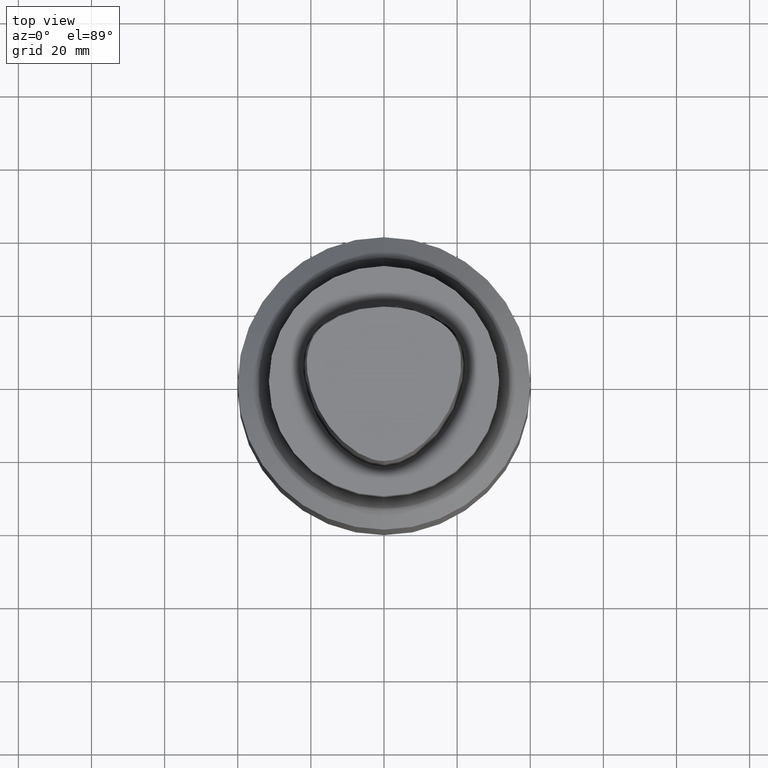
[diagram: clean part render]
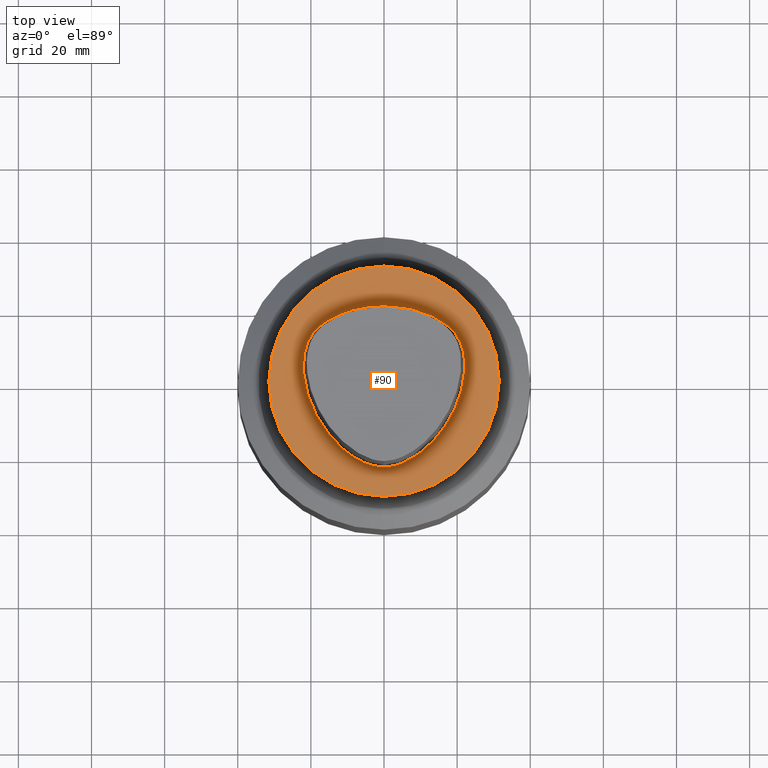
[diagram: same view with one face highlighted and labeled with its STEP entity id]
A machine part, top view. The second image highlights one B-rep face of the part: STEP entity #90.
In plain terms, the highlighted planar face has unit normal (-0, -0, 1).
Its self-contained STEP definition (entity closure, byte-faithful):
#53=EDGE_CURVE('Unnamed[1]',#135,#136,#137,.T.);
#55=EDGE_CURVE('Unnamed[1]',#139,#135,#140,.T.);
#69=EDGE_CURVE('Unnamed[1]',#136,#139,#159,.T.);
#85=EDGE_CURVE('Unnamed[1]',#181,#181,#182,.T.);
#90=ADVANCED_FACE('Unnamed[1]',(#188,#189),#190,.T.);
#135=VERTEX_POINT('',#235);
#136=VERTEX_POINT('',#236);
#137=B_SPLINE_CURVE_WITH_KNOTS('',3,(#237,#238,#239,#240,#241,#242,#243,#244,#245,#246,#247,#248,#249,#250,#251,#252,#253),.UNSPECIFIED.,.F.,.F.,(4,1,1,1,1,1,1,1,1,1,1,1,1,1,4),(-13.2302678617486,-12.816821991069,-12.4033761203893,-11.9899302497097,-11.57648437903,-11.1630385083504,-10.9563155730106,-10.7495926376707,-10.3361467669911,-9.92270089631145,-9.09580915495216,-8.26891741359287,-7.44202567223358,-7.02857980155394,-6.6151339308743),.UNSPECIFIED.);
#139=VERTEX_POINT('',#256);
#140=CIRCLE('',#257,0.949936168436318);
#159=B_SPLINE_CURVE_WITH_KNOTS('',3,(#436,#437,#438,#439,#440,#441,#442,#443,#444,#445,#446,#447,#448,#449,#450,#451,#452,#453),.UNSPECIFIED.,.F.,.F.,(4,1,1,1,1,1,1,1,1,2,1,1,1,1,4),(-6.6151339308743,-6.20168806019465,-5.78824218951501,-5.37479631883537,-4.96135044815572,-4.13445870679644,-3.30756696543715,-2.89412109475751,-2.48067522407786,-2.06722935339822,-1.65378348271857,-1.24033761203893,-0.826891741359287,-0.413445870679644,0.0),.UNSPECIFIED.);
#181=VERTEX_POINT('',#480);
#182=CIRCLE('',#481,31.5);
#188=FACE_BOUND('',#489,.T.);
#189=FACE_OUTER_BOUND('',#490,.T.);
#190=PLANE('',#491);
#235=CARTESIAN_POINT('',(0.044682985379347,20.6765087343109,1.61778115328528E-031));
#236=CARTESIAN_POINT('',(0.04359356758149,-23.4691235068931,7.78075697532443E-032));
#237=CARTESIAN_POINT('',(0.044682985379347,20.6765087343109,1.61778115328528E-031));
#238=CARTESIAN_POINT('',(1.42379272427753,20.6097915814392,8.62816615085482E-032));
#239=CARTESIAN_POINT('',(4.2230955003445,20.4837538303966,1.4791141972894E-031));
#240=CARTESIAN_POINT('',(8.47220762821777,19.6890432607088,9.86076131526265E-032));
#241=CARTESIAN_POINT('',(12.5141247708253,18.2434968480404,0.0));
#242=CARTESIAN_POINT('',(16.3038624872874,16.1734192182143,1.97215226305253E-031));
#243=CARTESIAN_POINT('',(19.1446913988473,13.7036723639434,-1.97215226305253E-031));
#244=CARTESIAN_POINT('',(20.7319894342149,11.1014620996188,0.0));
#245=CARTESIAN_POINT('',(21.7831756505763,8.28099229708081,-1.97215226305253E-031));
#246=CARTESIAN_POINT('',(22.2258240701438,4.60865440596506,0.0));
#247=CARTESIAN_POINT('',(21.7436130080666,-1.11326526354485,0.0));
#248=CARTESIAN_POINT('',(19.5519487660502,-7.95432366164584,0.0));
#249=CARTESIAN_POINT('',(14.9574167123838,-15.2089785567293,0.0));
#250=CARTESIAN_POINT('',(9.66840283021945,-20.0827414369705,-9.86076131526265E-032));
#251=CARTESIAN_POINT('',(4.51628650521788,-22.7946374572188,-9.86076131526265E-032));
#252=CARTESIAN_POINT('',(1.55867251738073,-23.4612972770043,-1.23259516440783E-032));
#253=CARTESIAN_POINT('',(0.04359356758149,-23.4691235068931,7.78075697532443E-032));
#256=CARTESIAN_POINT('',(-0.045171994691285,20.6766009553285,1.6755590516169E-031));
#257=AXIS2_PLACEMENT_3D('',#555,#556,#557);
#436=CARTESIAN_POINT('',(0.04359356758149,-23.4691235068931,7.78075697532443E-032));
#437=CARTESIAN_POINT('',(-1.4714994713963,-23.4767895315797,2.46519032881566E-032));
#438=CARTESIAN_POINT('',(-4.43923476371401,-22.821149804767,-4.93038065763132E-032));
#439=CARTESIAN_POINT('',(-8.35043230079961,-20.8000751253325,-9.86076131526265E-032));
#440=CARTESIAN_POINT('',(-11.744900222602,-18.1556117874078,-1.97215226305253E-031));
#441=CARTESIAN_POINT('',(-15.6989602501314,-14.0406306929147,-1.97215226305253E-031));
#442=CARTESIAN_POINT('',(-19.5352875070682,-8.00624990770787,1.97215226305253E-031));
#443=CARTESIAN_POINT('',(-21.7205626190491,-1.16081708945282,0.0));
#444=CARTESIAN_POINT('',(-22.2486616783342,4.54965558738736,0.0));
#445=CARTESIAN_POINT('',(-21.6646421256468,9.00229539124618,0.0));
#446=CARTESIAN_POINT('',(-20.3945635471922,11.7780544971003,0.0));
#447=CARTESIAN_POINT('',(-18.5925528034471,14.1980602922581,0.0));
#448=CARTESIAN_POINT('',(-16.3226584122258,16.1777748720707,0.0));
#449=CARTESIAN_POINT('',(-12.5076407874579,18.2524201541303,9.86076131526265E-032));
#450=CARTESIAN_POINT('',(-8.46776192107786,19.679114377952,9.86076131526265E-032));
#451=CARTESIAN_POINT('',(-4.23043497193604,20.487781597334,1.97215226305253E-031));
#452=CARTESIAN_POINT('',(-1.42313094248379,20.6127745766442,1.10933564796705E-031));
#453=CARTESIAN_POINT('',(-0.045171994691285,20.6766009553285,1.6755590516169E-031));
#480=CARTESIAN_POINT('',(-3.88267476788467E-031,31.5,3.85763741731416E-015));
#481=AXIS2_PLACEMENT_3D('',#594,#595,#596);
#489=EDGE_LOOP('',(#601,#602,#603));
#490=EDGE_LOOP('',(#604));
#491=AXIS2_PLACEMENT_3D('',#605,#606,#607);
#555=CARTESIAN_POINT('',(-0.001218547003662,19.7276821925089,1.97178046083078E-015));
#556=DIRECTION('',(6.12323399573677E-017,1.22464679914735E-016,-1.0));
#557=DIRECTION('',(-0.046269895968506,0.998928974816059,1.19500303158668E-016));
#594=CARTESIAN_POINT('',(0.0,0.0,0.0));
#595=DIRECTION('',(6.12323399573677E-017,1.22464679914735E-016,-1.0));
#596=DIRECTION('',(-1.23259516440783E-032,1.0,1.22464679914735E-016));
#601=ORIENTED_EDGE('',*,*,#53,.T.);
#602=ORIENTED_EDGE('',*,*,#69,.T.);
#603=ORIENTED_EDGE('',*,*,#55,.T.);
#604=ORIENTED_EDGE('',*,*,#85,.F.);
#605=CARTESIAN_POINT('',(-1.94133738394233E-031,15.75,1.92881870865708E-015));
#606=DIRECTION('',(-6.12323399573677E-017,-1.22464679914735E-016,1.0));
#607=DIRECTION('',(1.23259516440783E-032,-1.0,-1.22464679914735E-016));